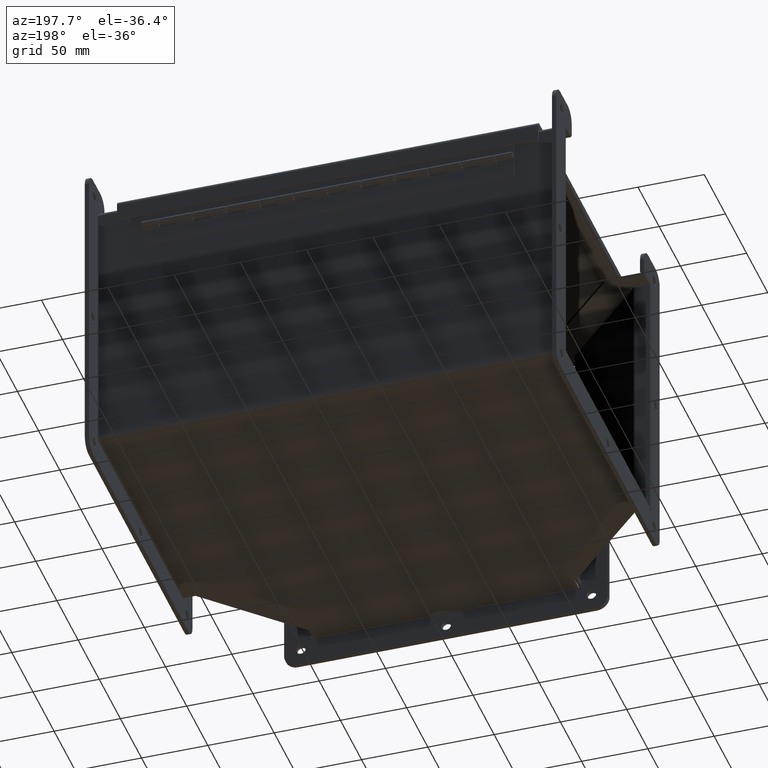
[diagram: clean part render]
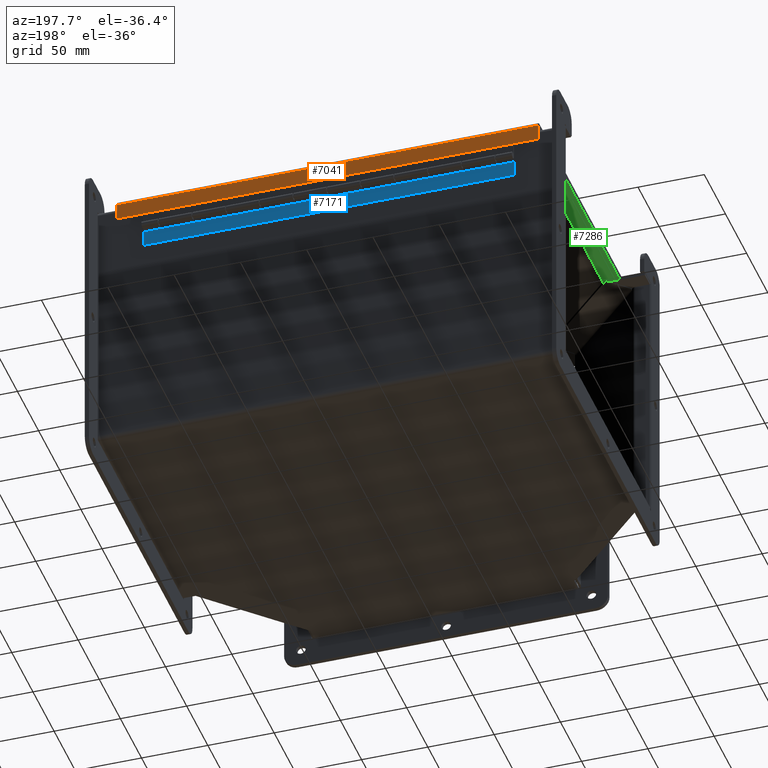
[diagram: same view with three faces highlighted in distinct colors, each labeled with its STEP entity id]
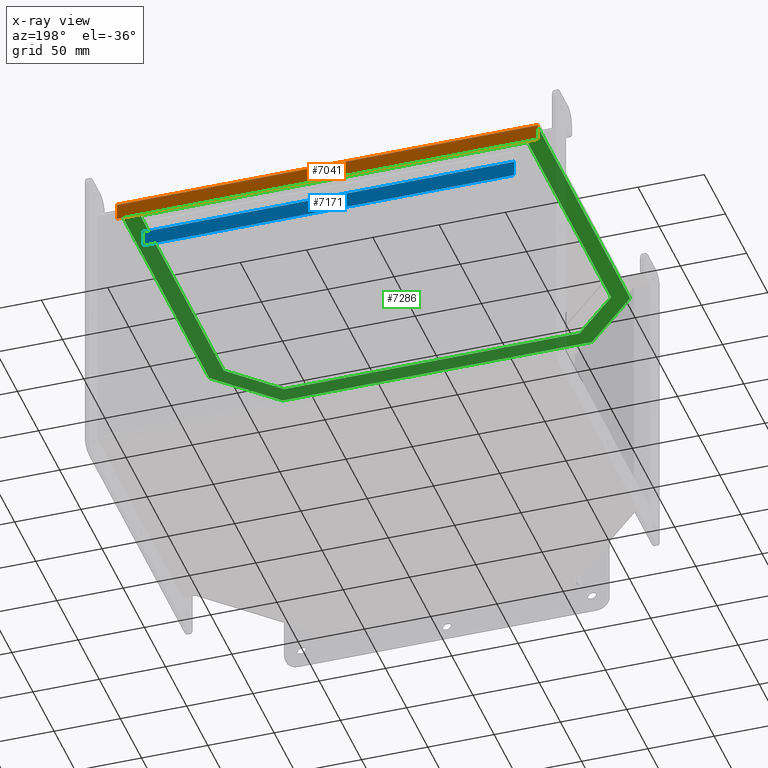
[diagram: x-ray of the same camera — body ghosted, the three highlighted faces saturated]
A machine part, auxiliary view with three faces highlighted in distinct colors.
The next image is the same camera in x-ray (body ghosted, the three faces saturated) — at least one of them is partly hidden behind the body in this view.
Their STEP definitions:

[orange] entity #7041 — the highlighted planar face has unit normal (0, 1, -0).
#378=PLANE('',#7458);
#658=FACE_OUTER_BOUND('',#1042,.T.);
#1042=EDGE_LOOP('',(#5177,#5178,#5179,#5180));
#1863=LINE('',#10728,#2573);
#1867=LINE('',#10738,#2577);
#1873=LINE('',#10754,#2583);
#1875=LINE('',#10757,#2585);
#2573=VECTOR('',#8408,12.5);
#2577=VECTOR('',#8418,0.488499999999999);
#2583=VECTOR('',#8436,0.4885);
#2585=VECTOR('',#8440,12.5);
#3221=VERTEX_POINT('',#10726);
#3222=VERTEX_POINT('',#10727);
#3225=VERTEX_POINT('',#10736);
#3229=VERTEX_POINT('',#10753);
#3963=EDGE_CURVE('',#3221,#3222,#1863,.T.);
#3969=EDGE_CURVE('',#3225,#3222,#1867,.T.);
#3977=EDGE_CURVE('',#3221,#3229,#1873,.T.);
#3979=EDGE_CURVE('',#3229,#3225,#1875,.T.);
#5177=ORIENTED_EDGE('',*,*,#3963,.T.);
#5178=ORIENTED_EDGE('',*,*,#3969,.F.);
#5179=ORIENTED_EDGE('',*,*,#3979,.F.);
#5180=ORIENTED_EDGE('',*,*,#3977,.F.);
#7041=ADVANCED_FACE('',(#658),#378,.T.);
#7458=AXIS2_PLACEMENT_3D('',#10758,#8441,#8442);
#8408=DIRECTION('',(1.,0.,4.90219102946642E-35));
#8418=DIRECTION('',(-1.11659845093129E-31,1.77635683940025E-15,1.));
#8436=DIRECTION('',(9.86076131526265E-32,-1.71512449944288E-15,-1.));
#8440=DIRECTION('',(1.,0.,0.));
#8441=DIRECTION('center_axis',(0.,1.,-1.71121299816527E-15));
#8442=DIRECTION('ref_axis',(1.,0.,0.));
#10726=CARTESIAN_POINT('',(-6.25,5.15625,-0.0624999999999998));
#10727=CARTESIAN_POINT('',(6.25,5.15625,-0.0624999999999998));
#10728=CARTESIAN_POINT('',(6.99353086378051E-16,5.15625,-0.0624999999999991));
#10736=CARTESIAN_POINT('',(6.25,5.15625,-0.551));
#10738=CARTESIAN_POINT('',(6.25,5.15625,0.210567233450025));
#10753=CARTESIAN_POINT('',(-6.25,5.15625,-0.551));
#10754=CARTESIAN_POINT('',(-6.25,5.15625,-0.0624999999999998));
#10757=CARTESIAN_POINT('',(-6.25,5.15625,-0.551));
#10758=CARTESIAN_POINT('Origin',(6.99353086378051E-16,5.15625,-0.238483191637494));

[blue] entity #7171 — the highlighted planar face has unit normal (0, 1, 0).
#462=PLANE('',#7682);
#788=FACE_OUTER_BOUND('',#1238,.T.);
#1238=EDGE_LOOP('',(#5861,#5862,#5863,#5864));
#2085=LINE('',#11380,#2795);
#2120=LINE('',#11442,#2830);
#2125=LINE('',#11474,#2835);
#2126=LINE('',#11475,#2836);
#2795=VECTOR('',#9030,0.47);
#2830=VECTOR('',#9091,11.);
#2835=VECTOR('',#9140,0.47);
#2836=VECTOR('',#9141,11.);
#3451=VERTEX_POINT('',#11377);
#3452=VERTEX_POINT('',#11379);
#3466=VERTEX_POINT('',#11440);
#3471=VERTEX_POINT('',#11473);
#4273=EDGE_CURVE('',#3452,#3451,#2085,.T.);
#4309=EDGE_CURVE('',#3451,#3466,#2120,.T.);
#4319=EDGE_CURVE('',#3466,#3471,#2125,.T.);
#4320=EDGE_CURVE('',#3452,#3471,#2126,.T.);
#5861=ORIENTED_EDGE('',*,*,#4319,.T.);
#5862=ORIENTED_EDGE('',*,*,#4320,.F.);
#5863=ORIENTED_EDGE('',*,*,#4273,.T.);
#5864=ORIENTED_EDGE('',*,*,#4309,.T.);
#7171=ADVANCED_FACE('',(#788),#462,.T.);
#7682=AXIS2_PLACEMENT_3D('',#11472,#9138,#9139);
#9030=DIRECTION('',(4.64995403176896E-17,1.,0.));
#9091=DIRECTION('',(0.,0.,1.));
#9138=DIRECTION('center_axis',(1.,-4.64995403176896E-17,0.));
#9139=DIRECTION('ref_axis',(0.,0.,-1.));
#9140=DIRECTION('',(-4.64995403176896E-17,-1.,0.));
#9141=DIRECTION('',(0.,0.,1.));
#11377=CARTESIAN_POINT('',(0.0418,0.47,0.));
#11379=CARTESIAN_POINT('',(0.0418,5.11902362043593E-18,0.));
#11380=CARTESIAN_POINT('',(0.0418,5.11902362043593E-18,0.));
#11440=CARTESIAN_POINT('',(0.0418,0.47,11.));
#11442=CARTESIAN_POINT('',(0.0418,0.47,0.));
#11472=CARTESIAN_POINT('Origin',(0.0418,0.47,0.));
#11473=CARTESIAN_POINT('',(0.0418,5.11902362043593E-18,11.));
#11474=CARTESIAN_POINT('',(0.0418,5.11902362043593E-18,11.));
#11475=CARTESIAN_POINT('',(0.0418,5.11902362043593E-18,0.));

[green] entity #7286 — the highlighted planar face has unit normal (0, 0, -1).
#206=FACE_BOUND('',#1383,.T.);
#532=PLANE('',#7893);
#903=FACE_OUTER_BOUND('',#1382,.T.);
#1382=EDGE_LOOP('',(#6424,#6425,#6426,#6427,#6428,#6429));
#1383=EDGE_LOOP('',(#6430,#6431,#6432,#6433,#6434,#6435));
#2292=LINE('',#12140,#3002);
#2295=LINE('',#12146,#3005);
#2298=LINE('',#12152,#3008);
#2301=LINE('',#12158,#3011);
#2304=LINE('',#12164,#3014);
#2307=LINE('',#12168,#3017);
#2310=LINE('',#12176,#3020);
#2313=LINE('',#12182,#3023);
#2316=LINE('',#12188,#3026);
#2319=LINE('',#12194,#3029);
#2322=LINE('',#12200,#3032);
#2325=LINE('',#12204,#3035);
#3002=VECTOR('',#9705,1.92807765030734);
#3005=VECTOR('',#9710,7.76164321881345);
#3008=VECTOR('',#9715,11.5);
#3011=VECTOR('',#9720,7.76164321881345);
#3014=VECTOR('',#9725,1.92807765030734);
#3017=VECTOR('',#9730,8.7732864376269);
#3020=VECTOR('',#9735,8.46875);
#3023=VECTOR('',#9740,2.34229121268044);
#3026=VECTOR('',#9745,9.1875);
#3029=VECTOR('',#9750,2.34229121268044);
#3032=VECTOR('',#9755,8.46875);
#3035=VECTOR('',#9760,12.5);
#3650=VERTEX_POINT('',#12137);
#3651=VERTEX_POINT('',#12139);
#3653=VERTEX_POINT('',#12145);
#3655=VERTEX_POINT('',#12151);
#3657=VERTEX_POINT('',#12157);
#3659=VERTEX_POINT('',#12163);
#3662=VERTEX_POINT('',#12173);
#3663=VERTEX_POINT('',#12175);
#3665=VERTEX_POINT('',#12181);
#3667=VERTEX_POINT('',#12187);
#3669=VERTEX_POINT('',#12193);
#3671=VERTEX_POINT('',#12199);
#4574=EDGE_CURVE('',#3651,#3650,#2292,.T.);
#4577=EDGE_CURVE('',#3653,#3651,#2295,.T.);
#4580=EDGE_CURVE('',#3655,#3653,#2298,.T.);
#4583=EDGE_CURVE('',#3657,#3655,#2301,.T.);
#4586=EDGE_CURVE('',#3659,#3657,#2304,.T.);
#4589=EDGE_CURVE('',#3650,#3659,#2307,.T.);
#4592=EDGE_CURVE('',#3663,#3662,#2310,.T.);
#4595=EDGE_CURVE('',#3665,#3663,#2313,.T.);
#4598=EDGE_CURVE('',#3667,#3665,#2316,.T.);
#4601=EDGE_CURVE('',#3669,#3667,#2319,.T.);
#4604=EDGE_CURVE('',#3671,#3669,#2322,.T.);
#4607=EDGE_CURVE('',#3662,#3671,#2325,.T.);
#6424=ORIENTED_EDGE('',*,*,#4607,.T.);
#6425=ORIENTED_EDGE('',*,*,#4604,.T.);
#6426=ORIENTED_EDGE('',*,*,#4601,.T.);
#6427=ORIENTED_EDGE('',*,*,#4598,.T.);
#6428=ORIENTED_EDGE('',*,*,#4595,.T.);
#6429=ORIENTED_EDGE('',*,*,#4592,.T.);
#6430=ORIENTED_EDGE('',*,*,#4583,.T.);
#6431=ORIENTED_EDGE('',*,*,#4580,.T.);
#6432=ORIENTED_EDGE('',*,*,#4577,.T.);
#6433=ORIENTED_EDGE('',*,*,#4574,.T.);
#6434=ORIENTED_EDGE('',*,*,#4589,.T.);
#6435=ORIENTED_EDGE('',*,*,#4586,.T.);
#7286=ADVANCED_FACE('',(#903,#206),#532,.T.);
#7893=AXIS2_PLACEMENT_3D('',#12205,#9761,#9762);
#9705=DIRECTION('',(0.707106781186547,0.,0.707106781186548));
#9710=DIRECTION('',(1.,0.,-9.01037404918187E-17));
#9715=DIRECTION('',(6.0813311858961E-17,0.,-1.));
#9720=DIRECTION('',(-1.,0.,9.01037404918186E-17));
#9725=DIRECTION('',(-0.707106781186547,0.,0.707106781186548));
#9730=DIRECTION('',(1.59427847557482E-16,0.,1.));
#9735=DIRECTION('',(-1.,0.,0.));
#9740=DIRECTION('',(-0.707106781186547,0.,-0.707106781186548));
#9745=DIRECTION('',(0.,0.,-1.));
#9750=DIRECTION('',(0.707106781186548,0.,-0.707106781186548));
#9755=DIRECTION('',(1.,0.,0.));
#9760=DIRECTION('',(0.,0.,1.));
#9761=DIRECTION('center_axis',(0.,1.,0.));
#9762=DIRECTION('ref_axis',(0.,0.,1.));
#12137=CARTESIAN_POINT('',(4.5625,0.125,-4.38664321881345));
#12139=CARTESIAN_POINT('',(3.19914321881345,0.125,-5.75));
#12140=CARTESIAN_POINT('',(3.77359416429118,0.125,-5.17554905452227));
#12145=CARTESIAN_POINT('',(-4.5625,0.125,-5.75));
#12146=CARTESIAN_POINT('',(-2.40777649963781,0.125,-5.75));
#12151=CARTESIAN_POINT('',(-4.5625,0.125,5.75));
#12152=CARTESIAN_POINT('',(-4.5625,0.125,2.875));
#12157=CARTESIAN_POINT('',(3.19914321881345,0.125,5.75));
#12158=CARTESIAN_POINT('',(1.47304510976891,0.125,5.75));
#12163=CARTESIAN_POINT('',(4.5625,0.125,4.38664321881345));
#12164=CARTESIAN_POINT('',(4.45527255488446,0.125,4.49387066392899));
#12168=CARTESIAN_POINT('',(4.5625,0.125,-2.19332160940673));
#12173=CARTESIAN_POINT('',(-5.0625,0.125,-6.25));
#12175=CARTESIAN_POINT('',(3.40625,0.125,-6.25));
#12176=CARTESIAN_POINT('',(5.0625,0.125,-6.25));
#12181=CARTESIAN_POINT('',(5.0625,0.125,-4.59375));
#12182=CARTESIAN_POINT('',(5.0625,0.125,-4.59375));
#12187=CARTESIAN_POINT('',(5.0625,0.125,4.59375));
#12188=CARTESIAN_POINT('',(5.0625,0.125,6.25));
#12193=CARTESIAN_POINT('',(3.40625,0.125,6.25));
#12194=CARTESIAN_POINT('',(3.40625,0.125,6.25));
#12199=CARTESIAN_POINT('',(-5.0625,0.125,6.25));
#12200=CARTESIAN_POINT('',(-5.0625,0.125,6.25));
#12204=CARTESIAN_POINT('',(-5.0625,0.125,-6.25));
#12205=CARTESIAN_POINT('Origin',(-0.253052999275627,0.125,0.));